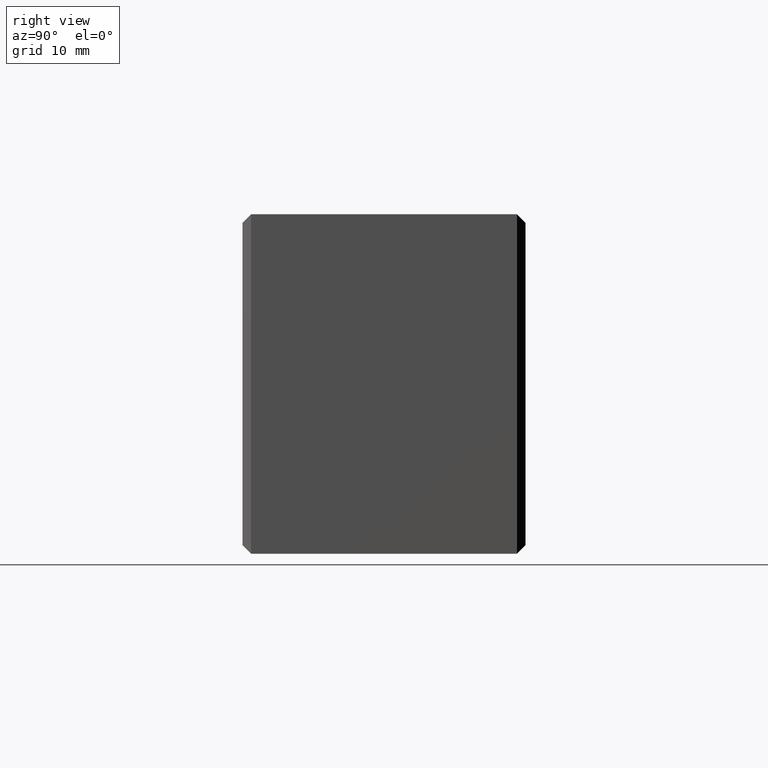
[diagram: clean part render]
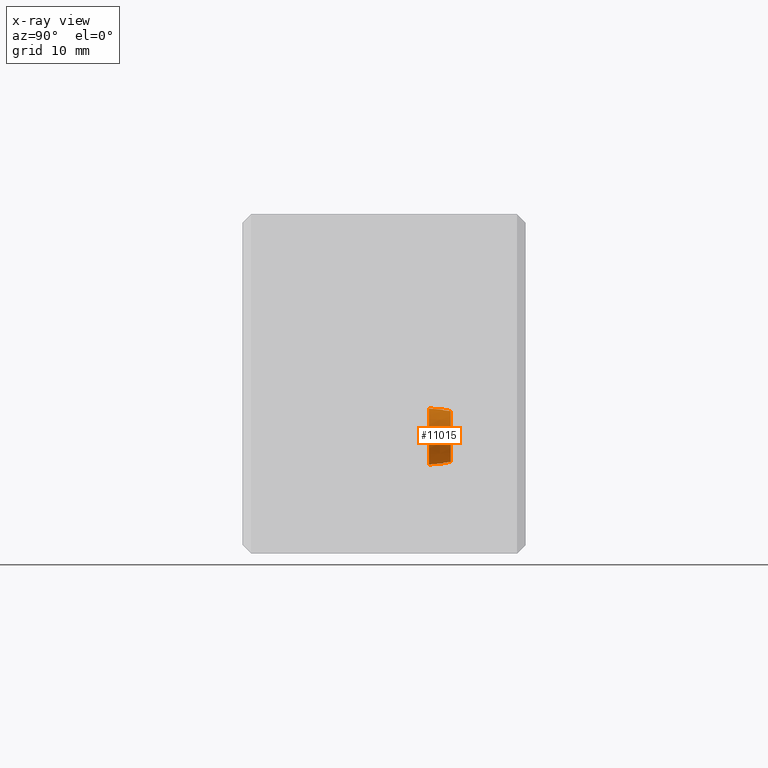
[diagram: x-ray — body ghosted, one internal face saturated and labeled with its STEP entity id]
A machine part, right view, then the same camera in x-ray: the body is ghosted and one INTERNAL B-rep face — a face not visible from any outside direction — is saturated and labeled: STEP entity #11015.
In plain terms, the highlighted conical surface has half-angle 5 deg.
Its self-contained STEP definition (entity closure, byte-faithful):
#305 = VERTEX_POINT ( 'NONE', #8031 ) ;
#320 = VERTEX_POINT ( 'NONE', #8051 ) ;
#332 = VERTEX_POINT ( 'NONE', #8035 ) ;
#367 = VERTEX_POINT ( 'NONE', #8028 ) ;
#419 = VERTEX_POINT ( 'NONE', #8159 ) ;
#431 = VERTEX_POINT ( 'NONE', #8131 ) ;
#435 = VERTEX_POINT ( 'NONE', #8169 ) ;
#440 = VERTEX_POINT ( 'NONE', #8148 ) ;
#489 = VERTEX_POINT ( 'NONE', #8197 ) ;
#492 = VERTEX_POINT ( 'NONE', #8231 ) ;
#2153 = FACE_OUTER_BOUND ( 'NONE', #6833, .T. ) ;
#2186 = CARTESIAN_POINT ( 'NONE',  ( 378.7158352908287500, 344.6035462314966900, 10.35000000000000300 ) ) ;
#2187 = DIRECTION ( 'NONE',  ( -0.0000000000000000000, -1.000000000000000000, 0.0000000000000000000 ) ) ;
#2188 = DIRECTION ( 'NONE',  ( 0.0000000000000000000, 0.0000000000000000000, -1.000000000000000000 ) ) ;
#5265 = AXIS2_PLACEMENT_3D ( 'NONE', #2186, #2187, #2188 ) ;
#5278 = CONICAL_SURFACE ( 'NONE', #5265, 2.475698476961496500, 0.08726646259840553600 ) ;
#5562 = VECTOR ( 'NONE', #13287, 999.9999999999998900 ) ;
#6080 = ORIENTED_EDGE ( 'NONE', *, *, #10355, .T. ) ;
#6103 = ORIENTED_EDGE ( 'NONE', *, *, #10381, .F. ) ;
#6107 = ORIENTED_EDGE ( 'NONE', *, *, #8875, .T. ) ;
#6110 = ORIENTED_EDGE ( 'NONE', *, *, #10367, .T. ) ;
#6115 = ORIENTED_EDGE ( 'NONE', *, *, #10387, .T. ) ;
#6119 = ORIENTED_EDGE ( 'NONE', *, *, #8871, .F. ) ;
#6123 = ORIENTED_EDGE ( 'NONE', *, *, #10351, .F. ) ;
#6137 = ORIENTED_EDGE ( 'NONE', *, *, #10395, .T. ) ;
#6152 = ORIENTED_EDGE ( 'NONE', *, *, #10364, .T. ) ;
#6154 = ORIENTED_EDGE ( 'NONE', *, *, #10383, .T. ) ;
#6833 = EDGE_LOOP ( 'NONE', ( #6080, #6115, #6103, #6119, #6123, #6154, #6137, #6110, #6107, #6152 ) ) ;
#8028 = CARTESIAN_POINT ( 'NONE',  ( 381.1915337678074700, 344.6035462313539000, 10.35000000000000300 ) ) ;
#8031 = CARTESIAN_POINT ( 'NONE',  ( 378.7158352908287500, 344.6035462313539000, 7.874301523026015400 ) ) ;
#8035 = CARTESIAN_POINT ( 'NONE',  ( 381.0231956183059800, 346.5276600846891600, 10.35000000000000300 ) ) ;
#8051 = CARTESIAN_POINT ( 'NONE',  ( 379.2062701700645000, 346.5276600846788100, 12.60463640306905700 ) ) ;
#8131 = CARTESIAN_POINT ( 'NONE',  ( 378.7158352908287500, 345.8637034781304500, 12.71544900362266800 ) ) ;
#8148 = CARTESIAN_POINT ( 'NONE',  ( 379.1830842944542600, 345.8637034781173200, 8.031158186214632600 ) ) ;
#8159 = CARTESIAN_POINT ( 'NONE',  ( 378.7158352908287500, 345.8637034781304500, 7.984550996377338400 ) ) ;
#8169 = CARTESIAN_POINT ( 'NONE',  ( 378.7158352908287500, 344.6035462313539000, 12.82569847697399200 ) ) ;
#8197 = CARTESIAN_POINT ( 'NONE',  ( 379.1830842944546600, 345.8637034781292500, 12.66884181378531300 ) ) ;
#8231 = CARTESIAN_POINT ( 'NONE',  ( 379.2062701700645000, 346.5276600846789300, 8.095363596929825400 ) ) ;
#8871 = EDGE_CURVE ( 'NONE', #305, #367, #12757, .T. ) ;
#8875 = EDGE_CURVE ( 'NONE', #332, #320, #12778, .T. ) ;
#9166 = CARTESIAN_POINT ( 'NONE',  ( 378.7158352908286900, 344.6035462313539000, 10.35000000000000300 ) ) ;
#9171 = DIRECTION ( 'NONE',  ( 2.449205097856041700E-016, -1.000000000000000000, 0.0000000000000000000 ) ) ;
#9203 = DIRECTION ( 'NONE',  ( 1.000000000000000000, 0.0000000000000000000, 0.0000000000000000000 ) ) ;
#9225 = CARTESIAN_POINT ( 'NONE',  ( 378.7158352908286900, 346.5276600846891600, 10.35000000000000300 ) ) ;
#9236 = DIRECTION ( 'NONE',  ( 1.000000000000000000, 0.0000000000000000000, 0.0000000000000000000 ) ) ;
#9243 = DIRECTION ( 'NONE',  ( 2.449205097856041700E-016, -1.000000000000000000, 0.0000000000000000000 ) ) ;
#9849 = B_SPLINE_CURVE_WITH_KNOTS ( 'NONE', 3,
 ( #13294, #13267, #13331, #13329 ),
 .UNSPECIFIED., .F., .F.,
 ( 4, 4 ),
 ( 1.316901716170526300E-014, 0.0006674565866087247900 ),
 .UNSPECIFIED. ) ;
#9864 = B_SPLINE_CURVE_WITH_KNOTS ( 'NONE', 3,
 ( #13102, #13081, #13126, #13088 ),
 .UNSPECIFIED., .F., .F.,
 ( 4, 4 ),
 ( 1.037832212387256100E-014, 0.0006674565865732914300 ),
 .UNSPECIFIED. ) ;
#10351 = EDGE_CURVE ( 'NONE', #419, #305, #13037, .T. ) ;
#10355 = EDGE_CURVE ( 'NONE', #489, #431, #12227, .T. ) ;
#10364 = EDGE_CURVE ( 'NONE', #320, #489, #9864, .T. ) ;
#10367 = EDGE_CURVE ( 'NONE', #492, #332, #12511, .T. ) ;
#10381 = EDGE_CURVE ( 'NONE', #367, #435, #12067, .T. ) ;
#10383 = EDGE_CURVE ( 'NONE', #419, #440, #12574, .T. ) ;
#10387 = EDGE_CURVE ( 'NONE', #431, #435, #13282, .T. ) ;
#10395 = EDGE_CURVE ( 'NONE', #440, #492, #9849, .T. ) ;
#11015 = ADVANCED_FACE ( 'NONE', ( #2153 ), #5278, .T. ) ;
#12067 = CIRCLE ( 'NONE', #12127, 2.475698476978760400 ) ;
#12127 = AXIS2_PLACEMENT_3D ( 'NONE', #13231, #13232, #13234 ) ;
#12227 = CIRCLE ( 'NONE', #12230, 2.365449003624176000 ) ;
#12230 = AXIS2_PLACEMENT_3D ( 'NONE', #13061, #13066, #13063 ) ;
#12244 = VECTOR ( 'NONE', #13024, 999.9999999999998900 ) ;
#12511 = CIRCLE ( 'NONE', #12534, 2.307360327475860300 ) ;
#12534 = AXIS2_PLACEMENT_3D ( 'NONE', #13170, #13134, #13148 ) ;
#12574 = CIRCLE ( 'NONE', #12759, 2.365449003624176000 ) ;
#12757 = CIRCLE ( 'NONE', #12758, 2.475698476978760400 ) ;
#12758 = AXIS2_PLACEMENT_3D ( 'NONE', #9166, #9171, #9203 ) ;
#12759 = AXIS2_PLACEMENT_3D ( 'NONE', #13256, #13295, #13260 ) ;
#12764 = AXIS2_PLACEMENT_3D ( 'NONE', #9225, #9243, #9236 ) ;
#12778 = CIRCLE ( 'NONE', #12764, 2.307360327475860300 ) ;
#13023 = CARTESIAN_POINT ( 'NONE',  ( 378.7158352908287500, 344.6035462314966900, 7.874301523038506700 ) ) ;
#13024 = DIRECTION ( 'NONE',  ( 0.0000000000000000000, -0.9961946980918599000, -0.08715574274635222400 ) ) ;
#13037 = LINE ( 'NONE', #13023, #12244 ) ;
#13061 = CARTESIAN_POINT ( 'NONE',  ( 378.7158352908286900, 345.8637034781304500, 10.35000000000000300 ) ) ;
#13063 = DIRECTION ( 'NONE',  ( 1.000000000000000000, 0.0000000000000000000, 0.0000000000000000000 ) ) ;
#13066 = DIRECTION ( 'NONE',  ( 2.449205097856041700E-016, -1.000000000000000000, 0.0000000000000000000 ) ) ;
#13081 = CARTESIAN_POINT ( 'NONE',  ( 379.1985418631136300, 346.3063503293863100, 12.62613235710595700 ) ) ;
#13088 = CARTESIAN_POINT ( 'NONE',  ( 379.1830842944546600, 345.8637034781292500, 12.66884181378531300 ) ) ;
#13102 = CARTESIAN_POINT ( 'NONE',  ( 379.2062701700645000, 346.5276600846788100, 12.60463640306905700 ) ) ;
#13126 = CARTESIAN_POINT ( 'NONE',  ( 379.1908132277839100, 346.0850311705524400, 12.64753156491483200 ) ) ;
#13134 = DIRECTION ( 'NONE',  ( 2.449205097856041700E-016, -1.000000000000000000, 0.0000000000000000000 ) ) ;
#13148 = DIRECTION ( 'NONE',  ( 1.000000000000000000, 0.0000000000000000000, 0.0000000000000000000 ) ) ;
#13170 = CARTESIAN_POINT ( 'NONE',  ( 378.7158352908286900, 346.5276600846891600, 10.35000000000000300 ) ) ;
#13231 = CARTESIAN_POINT ( 'NONE',  ( 378.7158352908286900, 344.6035462313539000, 10.35000000000000300 ) ) ;
#13232 = DIRECTION ( 'NONE',  ( 2.449205097856041700E-016, -1.000000000000000000, 0.0000000000000000000 ) ) ;
#13234 = DIRECTION ( 'NONE',  ( 1.000000000000000000, 0.0000000000000000000, 0.0000000000000000000 ) ) ;
#13256 = CARTESIAN_POINT ( 'NONE',  ( 378.7158352908286900, 345.8637034781304500, 10.35000000000000300 ) ) ;
#13260 = DIRECTION ( 'NONE',  ( 1.000000000000000000, 0.0000000000000000000, 0.0000000000000000000 ) ) ;
#13263 = CARTESIAN_POINT ( 'NONE',  ( 378.7158352908287500, 344.6035462314966900, 12.82569847696150100 ) ) ;
#13267 = CARTESIAN_POINT ( 'NONE',  ( 379.1908132277833400, 346.0850311705367500, 8.052468435083655500 ) ) ;
#13282 = LINE ( 'NONE', #13263, #5562 ) ;
#13287 = DIRECTION ( 'NONE',  ( 1.067350013816304000E-017, -0.9961946980918599000, 0.08715574274635222400 ) ) ;
#13294 = CARTESIAN_POINT ( 'NONE',  ( 379.1830842944542600, 345.8637034781173200, 8.031158186214632600 ) ) ;
#13295 = DIRECTION ( 'NONE',  ( 2.449205097856041700E-016, -1.000000000000000000, 0.0000000000000000000 ) ) ;
#13329 = CARTESIAN_POINT ( 'NONE',  ( 379.2062701700645000, 346.5276600846789300, 8.095363596929825400 ) ) ;
#13331 = CARTESIAN_POINT ( 'NONE',  ( 379.1985418631133500, 346.3063503293784600, 8.073867642893279900 ) ) ;